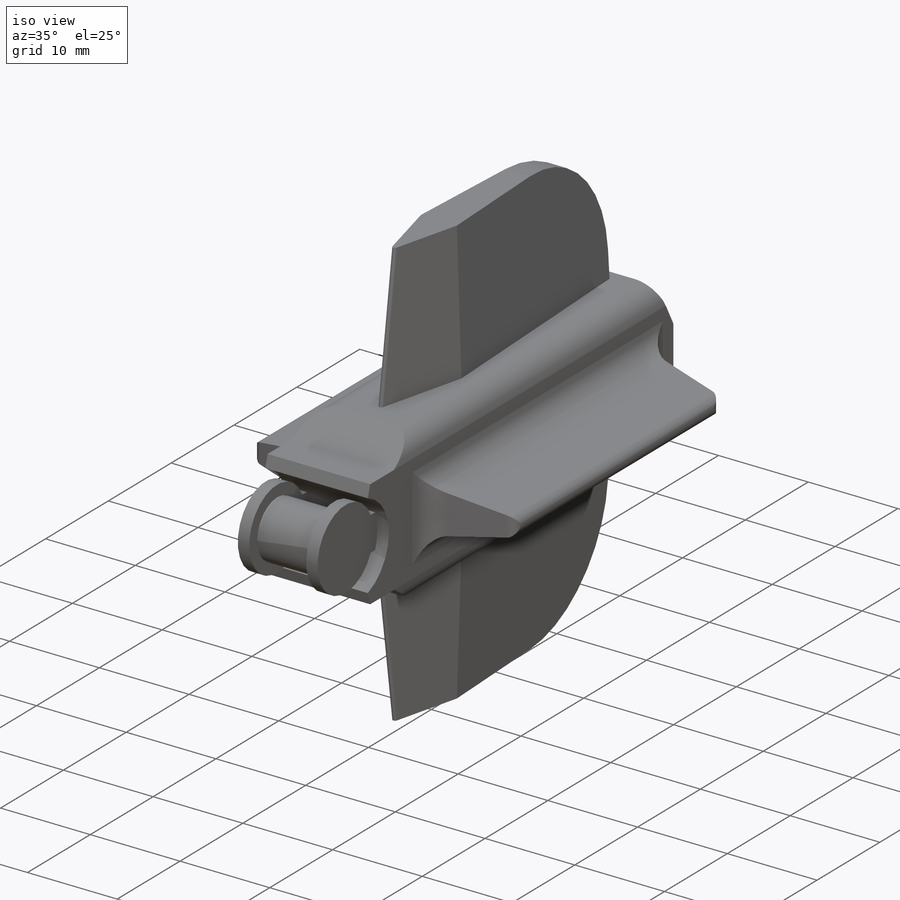
[diagram: iso view]
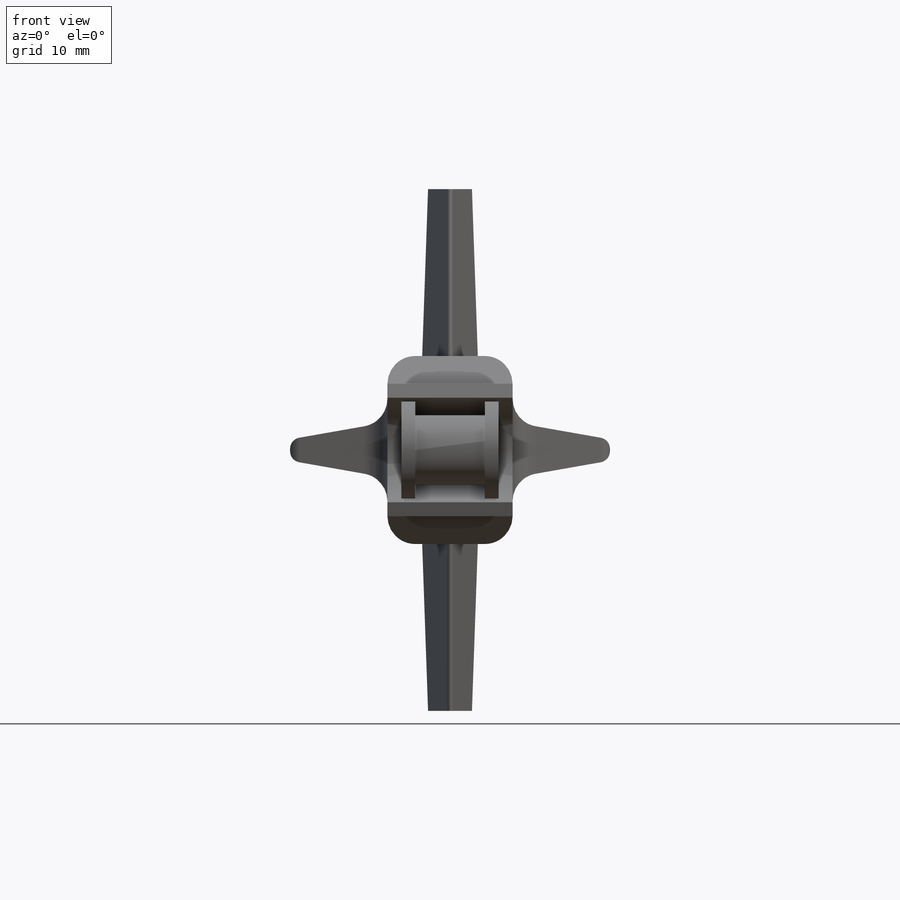
[diagram: front view]
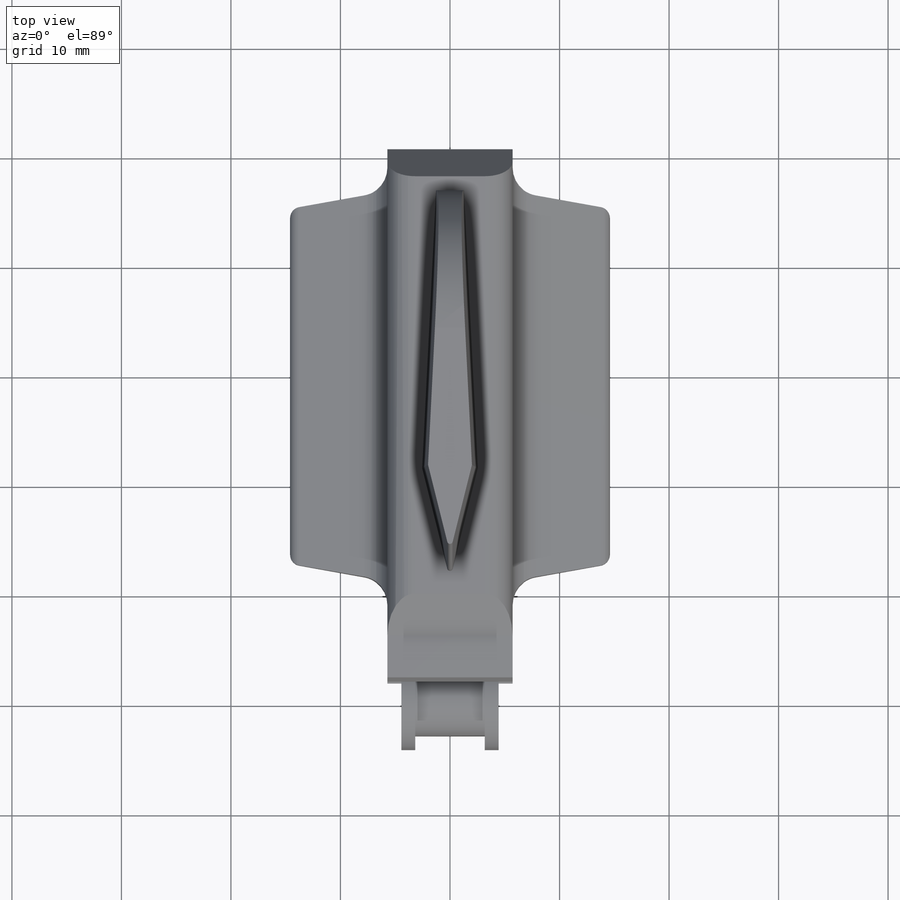
[diagram: top view]
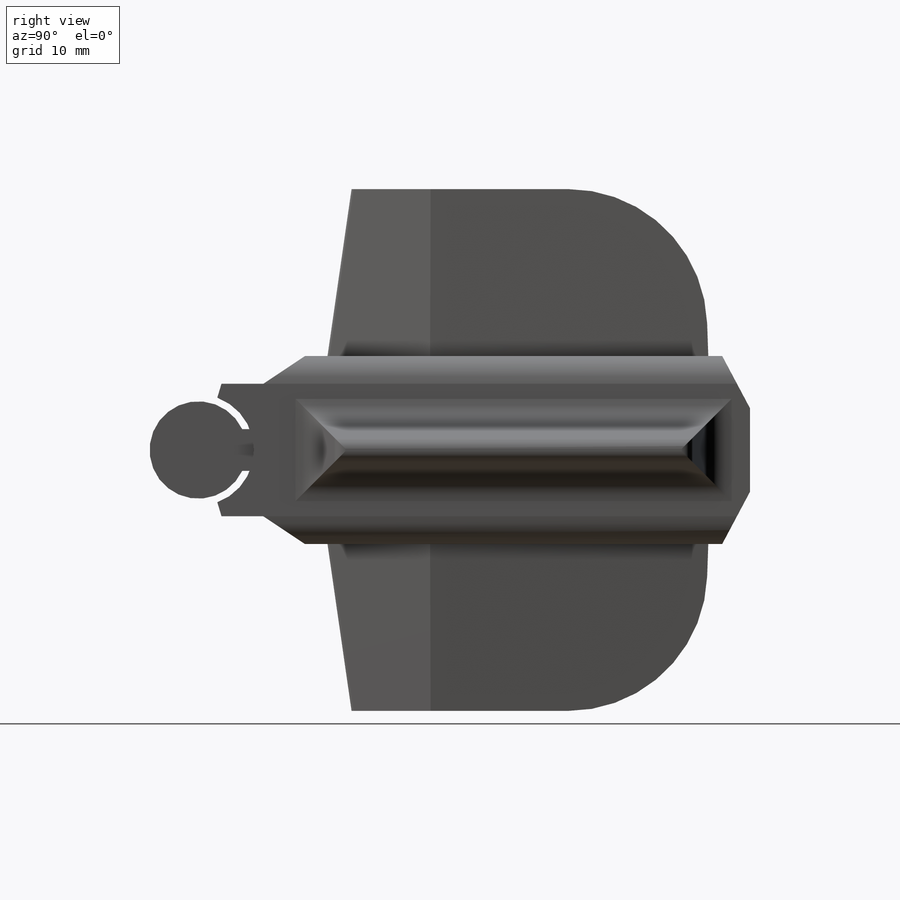
[diagram: right view]
SOLIDWORKS PART (.sldprt)
format: sldprt  version: not decoded by parser v0  size: 783,360 bytes
history: native  units: mm
features: sketch x7, extrude x6, fillet x5, mirror x4, material x1, cut_extrude x1 (+13 scaffold rows collapsed)
feature tree (37):
  scaffold x13  (default folders/planes/origin — collapsed)
  material  "Material <not specified>"
  sketch  "Sketch1"  dims[D1=6.35mm]
  extrude  "Boss-Extrude1"  Depth=6.35mm
  sketch  "Sketch2"  dims[D1=8.89mm]
  extrude  "Boss-Extrude2"  Depth=1.27mm
  mirror  "Mirror1"
  sketch  "Sketch3"  dims[D1=3.81mm D2=6.35mm]
  extrude  "Boss-Extrude3"  Depth=1.27mm
  mirror  "Mirror2"
  sketch  "Sketch4"  dims[c1.D1=5.08mm c1.D2=~1.096121mm c2.D2=140.0deg c2.D3=1.27mm c2.D4=0.381mm c2.D5=3.81mm c2.D6=3.81mm c2.D7=2.54mm c2.D8=38.1mm c2.D9=7.62mm c2.D10=2.54mm]
  extrude  "Boss-Extrude4"  Depth=2.54mm
  sketch  "Sketch5"  dims[D1=6.35mm]
  cut_extrude  "Cut-Extrude1"  Depth=12.7mm
  fillet  "Fillet1"  Radius=2.54mm
  sketch  "Sketch6"  dims[D1=3.81mm D2=5.08mm D3=35.56mm]
  extrude  "Boss-Extrude5"  Depth=8.89mm
  mirror  "Mirror3"
  fillet  "Fillet2"  Radius=1.016mm
  fillet  "Fillet3"  Radius=2.54mm
  sketch  "Sketch7"  dims[D1=2.54mm D2=1.27mm D3=1.27mm D4=2.54mm D5=25.4mm]
  extrude  "Boss-Extrude6"  Depth=15.24mm
  mirror  "Mirror4"
  fillet  "Fillet4"  Radius=0.254mm
  fillet  "Fillet5"  Radius=12.7mm
decode coverage: 19 of 23 modeling features carry decoded parameters
note: ~ marks probable driven/reference dimensions
note: suppression state not decoded; provenance and decode notes live in map.json
